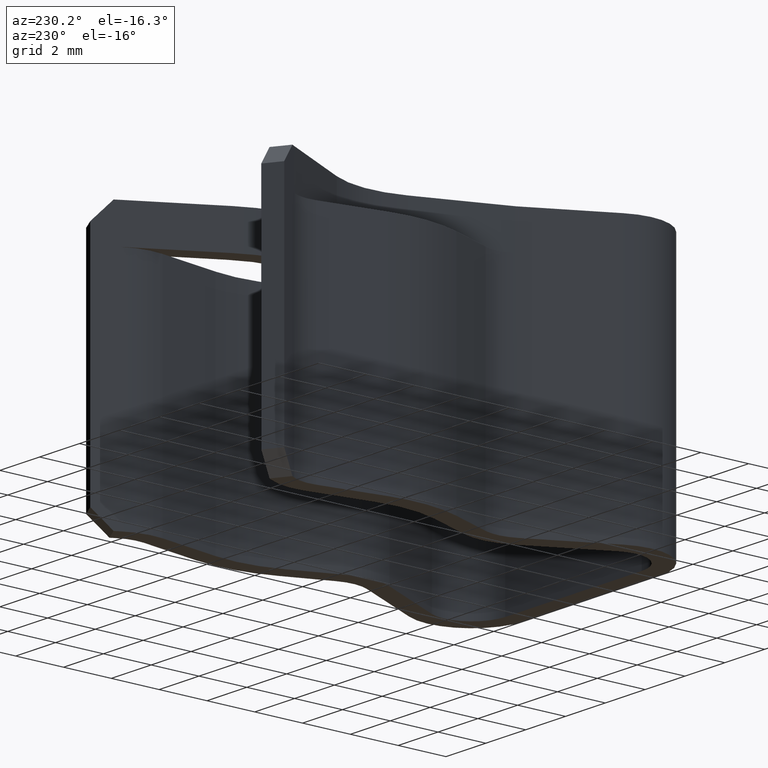
[diagram: clean part render]
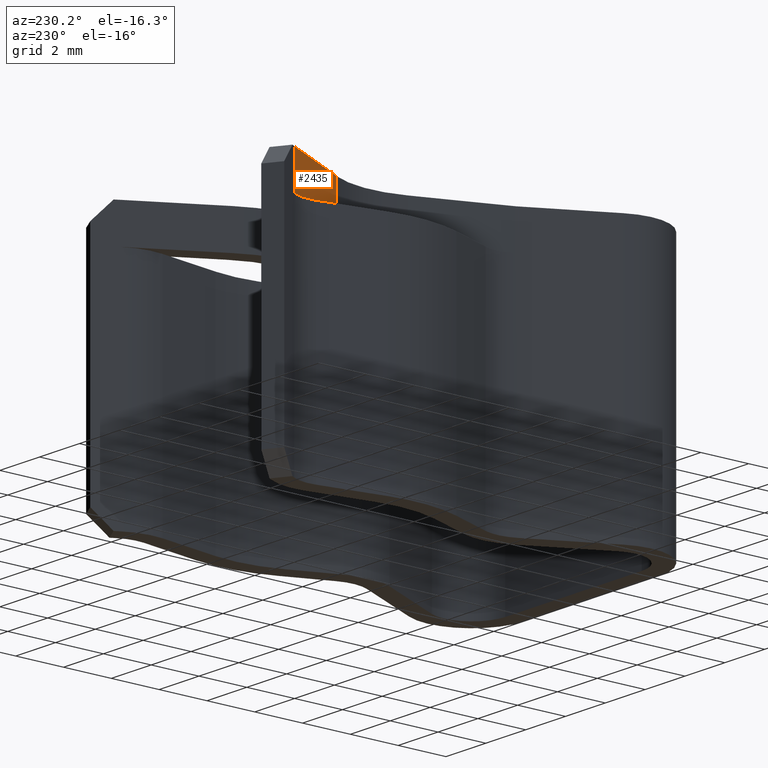
[diagram: same view with one face highlighted and labeled with its STEP entity id]
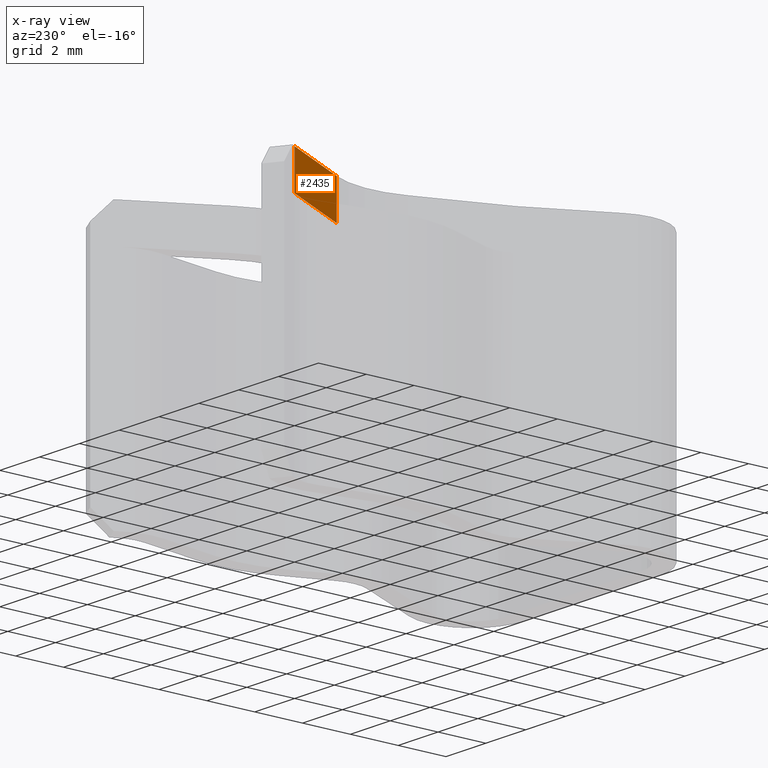
[diagram: x-ray of the same camera — body ghosted, the highlighted face saturated]
A machine part, auxiliary view. The second image highlights one B-rep face of the part: STEP entity #2435.
The next image is the same camera in x-ray: the body ghosted, the highlighted face saturated — about 0% of this face is hidden behind the body in this view.
In plain terms, the highlighted planar face has unit normal (0.8779, 0.4789, -0).
Its self-contained STEP definition (entity closure, byte-faithful):
#65 = VECTOR ( 'NONE', #656, 39.37007874015748100 ) ;
#113 = CARTESIAN_POINT ( 'NONE',  ( -0.1769252657739307000, 0.6066905961081258100, 0.06200000000000000000 ) ) ;
#125 = LINE ( 'NONE', #2218, #645 ) ;
#157 = AXIS2_PLACEMENT_3D ( 'NONE', #718, #2063, #924 ) ;
#178 = CARTESIAN_POINT ( 'NONE',  ( -0.1530365975372441300, 0.5628980805754830700, 0.0000000000000000000 ) ) ;
#226 = EDGE_CURVE ( 'NONE', #1853, #1825, #1933, .T. ) ;
#270 = ORIENTED_EDGE ( 'NONE', *, *, #226, .T. ) ;
#306 = LINE ( 'NONE', #2471, #762 ) ;
#352 = EDGE_LOOP ( 'NONE', ( #1616, #270, #2085, #834, #1398, #1699 ) ) ;
#407 = VERTEX_POINT ( 'NONE', #926 ) ;
#410 = VECTOR ( 'NONE', #1317, 39.37007874015748100 ) ;
#573 = DIRECTION ( 'NONE',  ( 0.4788805823891269500, -0.8778800532024010300, 0.0000000000000000000 ) ) ;
#592 = CARTESIAN_POINT ( 'NONE',  ( -0.1074401119664378900, 0.4793109679407596100, 0.06200000000000000000 ) ) ;
#620 = VECTOR ( 'NONE', #1000, 39.37007874015748100 ) ;
#645 = VECTOR ( 'NONE', #1263, 39.37007874015748100 ) ;
#656 = DIRECTION ( 'NONE',  ( -0.0000000000000000000, -0.0000000000000000000, -1.000000000000000000 ) ) ;
#718 = CARTESIAN_POINT ( 'NONE',  ( -0.1769252657739307000, 0.6066905961081258100, 0.06200000000000000000 ) ) ;
#762 = VECTOR ( 'NONE', #573, 39.37007874015748100 ) ;
#834 = ORIENTED_EDGE ( 'NONE', *, *, #1280, .F. ) ;
#917 = FACE_OUTER_BOUND ( 'NONE', #352, .T. ) ;
#924 = DIRECTION ( 'NONE',  ( -0.4788805823891268400, 0.8778800532024010300, 0.0000000000000000000 ) ) ;
#926 = CARTESIAN_POINT ( 'NONE',  ( -0.1769252657739307000, 0.6066905961081258100, 0.0000000000000000000 ) ) ;
#981 = CARTESIAN_POINT ( 'NONE',  ( -0.1074401119664378900, 0.4793109679407596100, 0.06200000000000000000 ) ) ;
#1000 = DIRECTION ( 'NONE',  ( 0.4788805823891269500, -0.8778800532024010300, 0.0000000000000000000 ) ) ;
#1090 = LINE ( 'NONE', #592, #65 ) ;
#1111 = VERTEX_POINT ( 'NONE', #1506 ) ;
#1114 = CARTESIAN_POINT ( 'NONE',  ( -0.1427822637499204500, 0.5440999178981413800, 0.0000000000000000000 ) ) ;
#1124 = LINE ( 'NONE', #2333, #620 ) ;
#1263 = DIRECTION ( 'NONE',  ( 0.4788805823891269500, -0.8778800532024010300, 0.0000000000000000000 ) ) ;
#1280 = EDGE_CURVE ( 'NONE', #1625, #1111, #1090, .T. ) ;
#1282 = EDGE_CURVE ( 'NONE', #407, #1853, #1124, .T. ) ;
#1317 = DIRECTION ( 'NONE',  ( 0.4788805823891269500, -0.8778800532024010300, 0.0000000000000000000 ) ) ;
#1323 = CARTESIAN_POINT ( 'NONE',  ( -0.1769252657739307000, 0.6066905961081258100, 0.06200000000000000000 ) ) ;
#1398 = ORIENTED_EDGE ( 'NONE', *, *, #1504, .F. ) ;
#1413 = VERTEX_POINT ( 'NONE', #113 ) ;
#1504 = EDGE_CURVE ( 'NONE', #1413, #1625, #125, .T. ) ;
#1506 = CARTESIAN_POINT ( 'NONE',  ( -0.1074401119664378900, 0.4793109679407596100, 0.0000000000000000000 ) ) ;
#1535 = CARTESIAN_POINT ( 'NONE',  ( -0.1769252657739307000, 0.6066905961081258100, 0.0000000000000000000 ) ) ;
#1616 = ORIENTED_EDGE ( 'NONE', *, *, #1282, .T. ) ;
#1625 = VERTEX_POINT ( 'NONE', #981 ) ;
#1699 = ORIENTED_EDGE ( 'NONE', *, *, #1844, .T. ) ;
#1719 = VECTOR ( 'NONE', #2279, 39.37007874015748100 ) ;
#1774 = LINE ( 'NONE', #1323, #1719 ) ;
#1825 = VERTEX_POINT ( 'NONE', #1114 ) ;
#1842 = EDGE_CURVE ( 'NONE', #1825, #1111, #306, .T. ) ;
#1844 = EDGE_CURVE ( 'NONE', #1413, #407, #1774, .T. ) ;
#1853 = VERTEX_POINT ( 'NONE', #178 ) ;
#1869 = PLANE ( 'NONE',  #157 ) ;
#1933 = LINE ( 'NONE', #1535, #410 ) ;
#2063 = DIRECTION ( 'NONE',  ( 0.8778800532024011400, 0.4788805823891269000, -0.0000000000000000000 ) ) ;
#2085 = ORIENTED_EDGE ( 'NONE', *, *, #1842, .T. ) ;
#2218 = CARTESIAN_POINT ( 'NONE',  ( -0.1769252657739307000, 0.6066905961081258100, 0.06200000000000000000 ) ) ;
#2279 = DIRECTION ( 'NONE',  ( -0.0000000000000000000, -0.0000000000000000000, -1.000000000000000000 ) ) ;
#2333 = CARTESIAN_POINT ( 'NONE',  ( -0.1769252657739307000, 0.6066905961081258100, 0.0000000000000000000 ) ) ;
#2435 = ADVANCED_FACE ( 'NONE', ( #917 ), #1869, .F. ) ;
#2471 = CARTESIAN_POINT ( 'NONE',  ( -0.1769252657739307000, 0.6066905961081258100, 0.0000000000000000000 ) ) ;